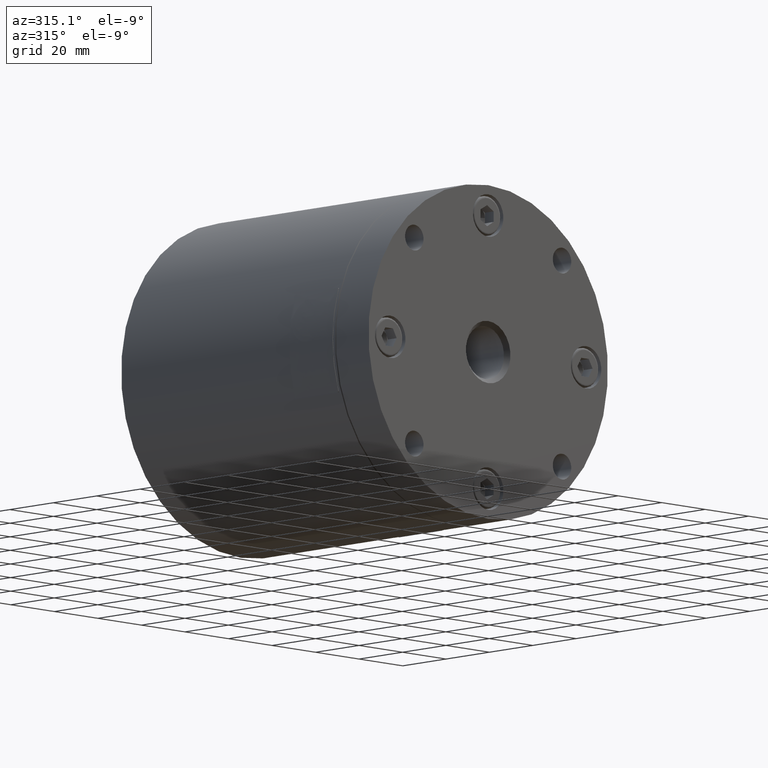
[diagram: clean part render]
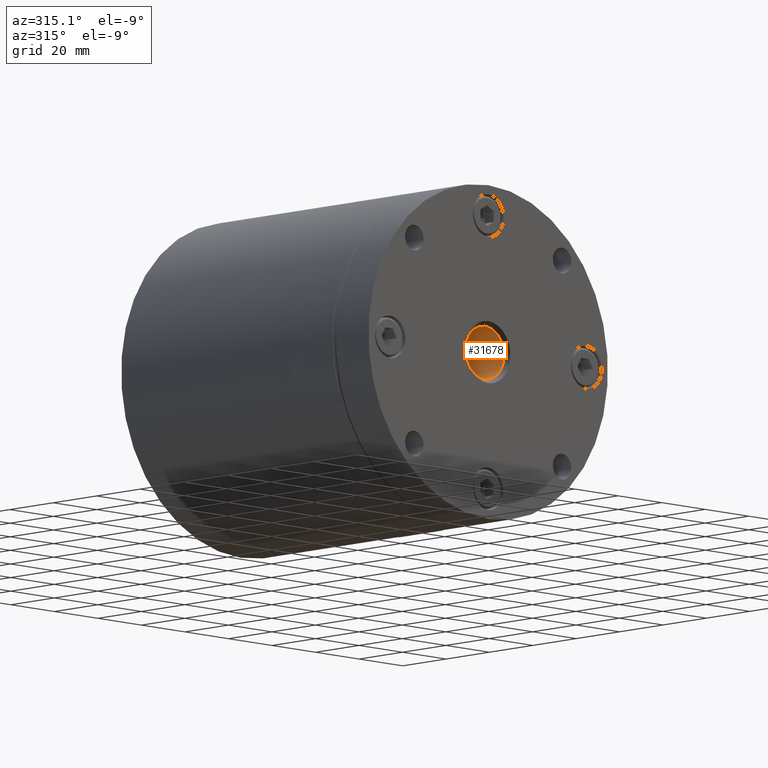
[diagram: same view with one face highlighted and labeled with its STEP entity id]
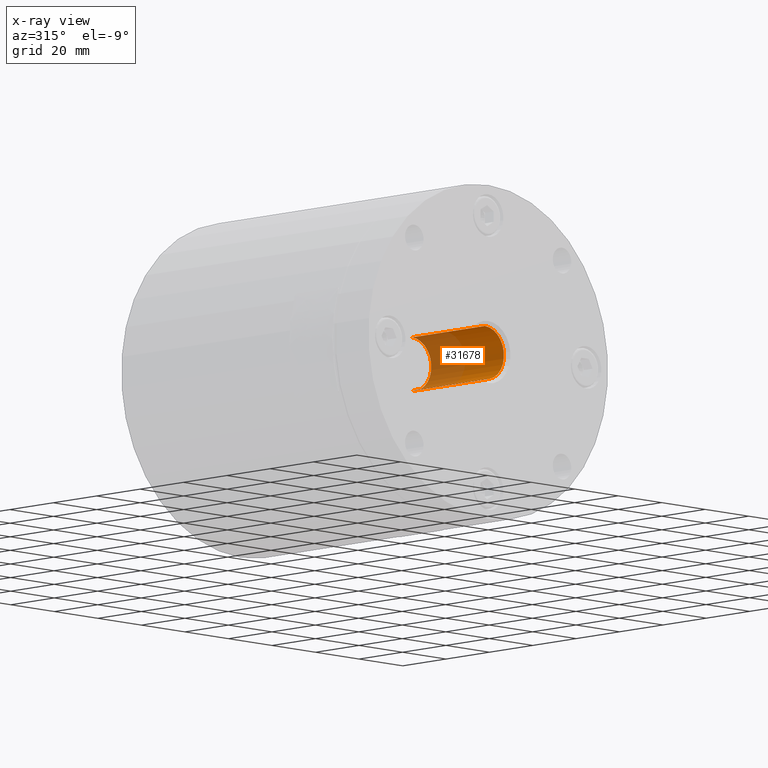
[diagram: x-ray of the same camera — body ghosted, the highlighted face saturated]
A machine part, auxiliary view. The second image highlights one B-rep face of the part: STEP entity #31678.
The next image is the same camera in x-ray: the body ghosted, the highlighted face saturated — about 47% of this face is hidden behind the body in this view.
In plain terms, the highlighted cylindrical surface (edge-blend (fillet) strip) has radius 8.75 mm, axis along (0, -1, 0).
Its self-contained STEP definition (entity closure, byte-faithful):
#196 = DIRECTION ( 'NONE',  ( 0.0000000000000000000, -1.000000000000000000, 0.0000000000000000000 ) ) ;
#2677 = ORIENTED_EDGE ( 'NONE', *, *, #11776, .F. ) ;
#2969 = CIRCLE ( 'NONE', #24497, 8.750000000000000000 ) ;
#3206 = CARTESIAN_POINT ( 'NONE',  ( 1.071565949253934100E-015, 35.00000000000000000, 8.750000000000000000 ) ) ;
#4778 = DIRECTION ( 'NONE',  ( -0.0000000000000000000, -1.000000000000000000, -0.0000000000000000000 ) ) ;
#6109 = CARTESIAN_POINT ( 'NONE',  ( 0.0000000000000000000, 0.0000000000000000000, 0.0000000000000000000 ) ) ;
#7578 = CARTESIAN_POINT ( 'NONE',  ( 1.071565949253934100E-015, 0.0000000000000000000, 8.750000000000000000 ) ) ;
#10377 = EDGE_CURVE ( 'NONE', #31483, #18504, #2969, .T. ) ;
#11776 = EDGE_CURVE ( 'NONE', #18504, #12314, #27525, .T. ) ;
#12314 = VERTEX_POINT ( 'NONE', #32199 ) ;
#13225 = CIRCLE ( 'NONE', #17435, 8.750000000000000000 ) ;
#14279 = CARTESIAN_POINT ( 'NONE',  ( 0.0000000000000000000, 1.499999999999988000, -8.750000000000000000 ) ) ;
#15771 = AXIS2_PLACEMENT_3D ( 'NONE', #6109, #32709, #36278 ) ;
#16509 = FACE_OUTER_BOUND ( 'NONE', #33044, .T. ) ;
#16589 = ORIENTED_EDGE ( 'NONE', *, *, #29791, .T. ) ;
#17435 = AXIS2_PLACEMENT_3D ( 'NONE', #19173, #4778, #36511 ) ;
#17766 = EDGE_CURVE ( 'NONE', #31483, #27177, #22405, .T. ) ;
#18504 = VERTEX_POINT ( 'NONE', #3206 ) ;
#19173 = CARTESIAN_POINT ( 'NONE',  ( 0.0000000000000000000, 1.499999999999988000, 0.0000000000000000000 ) ) ;
#19383 = CARTESIAN_POINT ( 'NONE',  ( 0.0000000000000000000, 35.00000000000000000, 0.0000000000000000000 ) ) ;
#19895 = DIRECTION ( 'NONE',  ( 0.0000000000000000000, 0.0000000000000000000, -1.000000000000000000 ) ) ;
#20794 = ORIENTED_EDGE ( 'NONE', *, *, #10377, .F. ) ;
#22405 = LINE ( 'NONE', #23428, #31959 ) ;
#23428 = CARTESIAN_POINT ( 'NONE',  ( 0.0000000000000000000, 0.0000000000000000000, -8.750000000000000000 ) ) ;
#24497 = AXIS2_PLACEMENT_3D ( 'NONE', #19383, #25608, #19895 ) ;
#25608 = DIRECTION ( 'NONE',  ( 0.0000000000000000000, -1.000000000000000000, 0.0000000000000000000 ) ) ;
#27177 = VERTEX_POINT ( 'NONE', #14279 ) ;
#27525 = LINE ( 'NONE', #7578, #37569 ) ;
#28300 = CYLINDRICAL_SURFACE ( 'NONE', #15771, 8.750000000000000000 ) ;
#29791 = EDGE_CURVE ( 'NONE', #27177, #12314, #13225, .T. ) ;
#31229 = ORIENTED_EDGE ( 'NONE', *, *, #17766, .T. ) ;
#31483 = VERTEX_POINT ( 'NONE', #31852 ) ;
#31678 = ADVANCED_FACE ( 'NONE', ( #16509 ), #28300, .F. ) ;
#31852 = CARTESIAN_POINT ( 'NONE',  ( 0.0000000000000000000, 35.00000000000000000, -8.750000000000000000 ) ) ;
#31959 = VECTOR ( 'NONE', #196, 1000.000000000000000 ) ;
#32199 = CARTESIAN_POINT ( 'NONE',  ( 1.071565949253934100E-015, 1.499999999999988000, 8.750000000000000000 ) ) ;
#32709 = DIRECTION ( 'NONE',  ( 0.0000000000000000000, -1.000000000000000000, 0.0000000000000000000 ) ) ;
#33044 = EDGE_LOOP ( 'NONE', ( #2677, #20794, #31229, #16589 ) ) ;
#36278 = DIRECTION ( 'NONE',  ( 0.0000000000000000000, 0.0000000000000000000, -1.000000000000000000 ) ) ;
#36511 = DIRECTION ( 'NONE',  ( 0.0000000000000000000, 0.0000000000000000000, 1.000000000000000000 ) ) ;
#36601 = DIRECTION ( 'NONE',  ( 0.0000000000000000000, -1.000000000000000000, 0.0000000000000000000 ) ) ;
#37569 = VECTOR ( 'NONE', #36601, 1000.000000000000000 ) ;